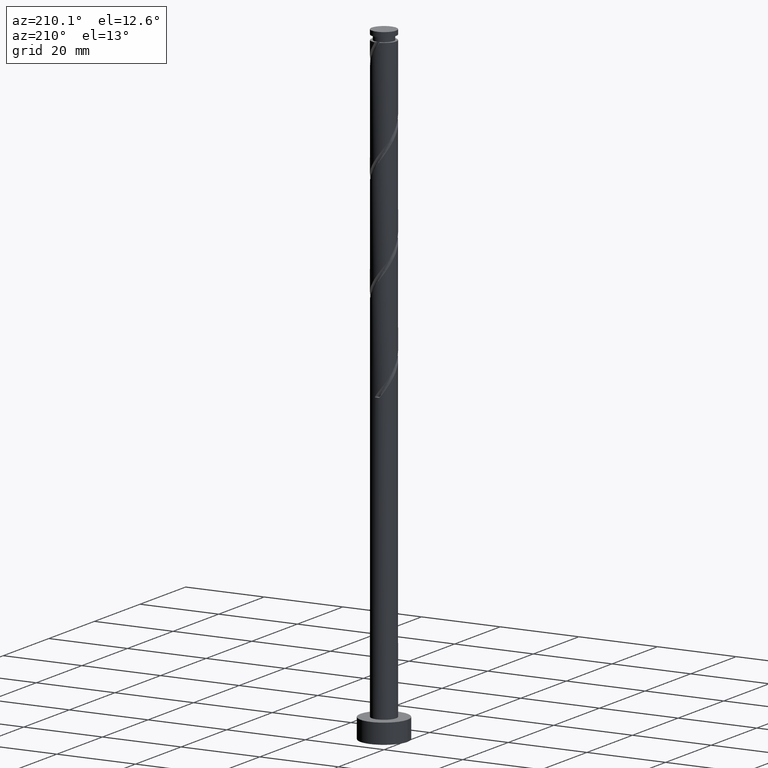
[diagram: clean part render]
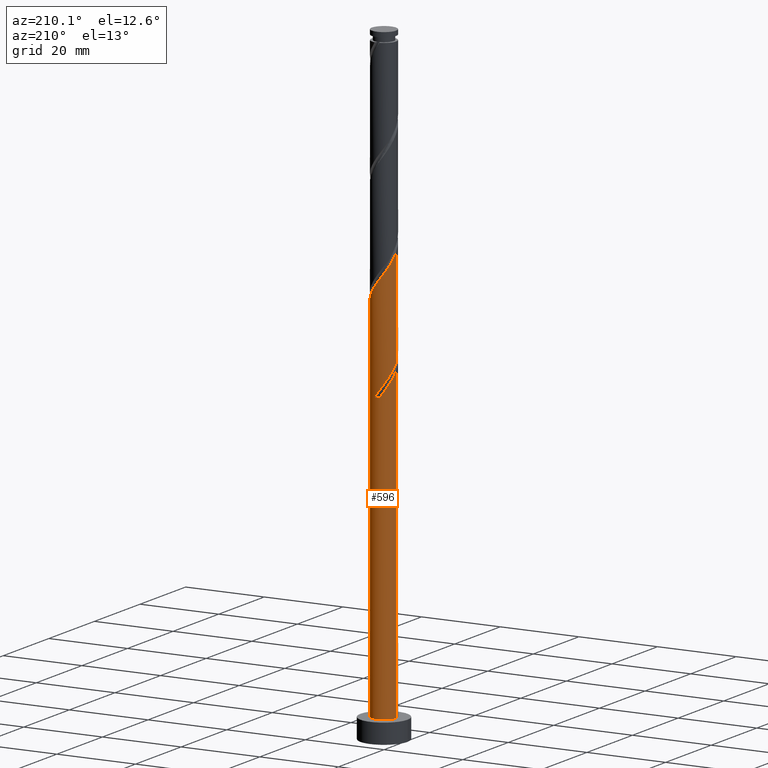
[diagram: same view with one face highlighted and labeled with its STEP entity id]
A machine part, auxiliary view. The second image highlights one B-rep face of the part: STEP entity #596.
In plain terms, the highlighted cylindrical surface (edge-blend (fillet) strip) has radius 3.1 mm, axis along (-0, -0, -1).
Its self-contained STEP definition (entity closure, byte-faithful):
#2 = EDGE_LOOP ( 'NONE', ( #758, #532, #890, #922, #84, #842, #1094, #31 ) ) ;
#27 = DIRECTION ( 'NONE',  ( -0.000000000000000000, -0.000000000000000000, -1.000000000000000000 ) ) ;
#31 = ORIENTED_EDGE ( 'NONE', *, *, #294, .F. ) ;
#79 = CARTESIAN_POINT ( 'NONE',  ( 0.6168922110061061392, 3.037999999999998924, 77.56397042250446816 ) ) ;
#84 = ORIENTED_EDGE ( 'NONE', *, *, #1153, .F. ) ;
#92 = CARTESIAN_POINT ( 'NONE',  ( 2.245062623899104715, 2.183656025078342999, 99.98821284674693288 ) ) ;
#135 = CARTESIAN_POINT ( 'NONE',  ( 0.000000000000000000, 0.000000000000000000, 77.56397042250448237 ) ) ;
#157 = CARTESIAN_POINT ( 'NONE',  ( -2.919284625192889671, 1.042965616457419697, 83.62457648311053049 ) ) ;
#200 = CARTESIAN_POINT ( 'NONE',  ( -3.100000000000000089, 0.000000000000000000, 160.0000000000000000 ) ) ;
#202 = CARTESIAN_POINT ( 'NONE',  ( -1.053690668162835520, 2.949304290322760203, 78.17003102856506302 ) ) ;
#220 = EDGE_CURVE ( 'NONE', #1447, #398, #480, .T. ) ;
#223 = CARTESIAN_POINT ( 'NONE',  ( 3.069240442222558318, 0.6232358533614310581, 97.56397042250448237 ) ) ;
#238 = CARTESIAN_POINT ( 'NONE',  ( -3.100000000000004974, -2.602486802408363546E-15, 110.0478492765369083 ) ) ;
#244 = CARTESIAN_POINT ( 'NONE',  ( 3.100000000000004974, 2.437961774669903870E-15, 96.71451594320359391 ) ) ;
#266 = DIRECTION ( 'NONE',  ( 0.000000000000000000, -0.000000000000000000, -1.000000000000000000 ) ) ;
#282 = CARTESIAN_POINT ( 'NONE',  ( -3.094870455675655663, 0.1782606591089399839, 84.83669769523174864 ) ) ;
#294 = EDGE_CURVE ( 'NONE', #1347, #1640, #303, .T. ) ;
#300 = LINE ( 'NONE', #520, #1242 ) ;
#303 = LINE ( 'NONE', #382, #694 ) ;
#333 = CARTESIAN_POINT ( 'NONE',  ( -0.2639997657463932224, 3.088738273743155016, 78.77609163462568631 ) ) ;
#334 = DIRECTION ( 'NONE',  ( -0.000000000000000000, -0.000000000000000000, -1.000000000000000000 ) ) ;
#350 = CARTESIAN_POINT ( 'NONE',  ( -1.447807249622134806, 2.741141033938533589, 78.77609163462567210 ) ) ;
#354 = DIRECTION ( 'NONE',  ( -0.000000000000000000, -0.000000000000000000, -1.000000000000000000 ) ) ;
#355 = CARTESIAN_POINT ( 'NONE',  ( -2.699945692952827603, 1.523250883835457481, 107.8670007255347656 ) ) ;
#358 = VERTEX_POINT ( 'NONE', #79 ) ;
#359 = CARTESIAN_POINT ( 'NONE',  ( -2.699945692952827603, 1.523250883835457481, 81.20033405886810840 ) ) ;
#382 = CARTESIAN_POINT ( 'NONE',  ( -3.100000000000000089, 0.000000000000000000, 160.0000000000000000 ) ) ;
#398 = VERTEX_POINT ( 'NONE', #1329 ) ;
#457 = CARTESIAN_POINT ( 'NONE',  ( -0.7080932853421627593, 3.050780837809067059, 79.38215224068629539 ) ) ;
#472 = EDGE_CURVE ( 'NONE', #1118, #358, #927, .T. ) ;
#480 = CIRCLE ( 'NONE', #1296, 3.100000000000000089 ) ;
#496 = CARTESIAN_POINT ( 'NONE',  ( -3.100000000000004530, 0.3550396748938864921, 109.5618893235655804 ) ) ;
#508 = CARTESIAN_POINT ( 'NONE',  ( -2.161429555315033113, 2.222211123500799967, 106.6548795134135332 ) ) ;
#520 = CARTESIAN_POINT ( 'NONE',  ( 3.100000000000000089, 3.796405077356794918E-16, 160.0000000000000000 ) ) ;
#526 = VERTEX_POINT ( 'NONE', #888 ) ;
#532 = ORIENTED_EDGE ( 'NONE', *, *, #770, .T. ) ;
#593 = CARTESIAN_POINT ( 'NONE',  ( -3.099999999999998757, 3.484939223914675232E-15, 85.08009156847202803 ) ) ;
#595 = DIRECTION ( 'NONE',  ( 1.000000000000000000, 0.000000000000000000, 0.000000000000000000 ) ) ;
#596 = ADVANCED_FACE ( 'NONE', ( #1497 ), #1280, .T. ) ;
#605 = CARTESIAN_POINT ( 'NONE',  ( -1.447807249622134806, 2.741141033938533589, 105.4427583012923293 ) ) ;
#626 = CARTESIAN_POINT ( 'NONE',  ( -1.053690668162835520, 2.949304290322760203, 104.8366976952317202 ) ) ;
#630 = DIRECTION ( 'NONE',  ( -0.000000000000000000, -0.000000000000000000, -1.000000000000000000 ) ) ;
#639 = CARTESIAN_POINT ( 'NONE',  ( 2.919284625192895000, 1.042965616457420364, 98.17003102856507724 ) ) ;
#650 =( BOUNDED_CURVE ( )  B_SPLINE_CURVE ( 2, ( #906, #913, #282, #1292, #157, #1043, #1054, #1210, #1609, #1446, #1462, #457, #333, #835, #703 ),
 .UNSPECIFIED., .F., .T. ) 
 B_SPLINE_CURVE_WITH_KNOTS ( ( 3, 2, 2, 2, 2, 2, 2, 3 ),
 ( 0.9295252162417513286, 0.9318181818181817677, 0.9431818181818182323, 0.9545454545454545858, 0.9659090909090909394, 0.9772727272727272929, 0.9886363636363636465, 1.000000000000000000 ),
 .UNSPECIFIED. ) 
 CURVE ( )  GEOMETRIC_REPRESENTATION_ITEM ( )  RATIONAL_B_SPLINE_CURVE ( ( 0.9061101570135575711, 0.9072237824201396794, 0.9090909090909171653, 0.8998376744372194036, 0.9090909090909171653, 0.8998376744372194036, 0.9090909090909171653, 0.8998376744372194036, 0.9090909090909171653, 0.8998376744372194036, 0.9090909090909171653, 0.8998376744372194036, 0.9090909090909171653, 0.8998376744372194036, 0.9090909090909171653 ) ) 
 REPRESENTATION_ITEM ( '' )  );
#694 = VECTOR ( 'NONE', #354, 1000.000000000000000 ) ;
#698 = CARTESIAN_POINT ( 'NONE',  ( 0.000000000000000000, 0.000000000000000000, 5.000000000000000000 ) ) ;
#703 = CARTESIAN_POINT ( 'NONE',  ( 0.6168922110061061392, 3.037999999999998924, 77.56397042250446816 ) ) ;
#712 = CARTESIAN_POINT ( 'NONE',  ( -2.918956106357025515, 1.135057298223624000, 81.80639466492874590 ) ) ;
#735 = CARTESIAN_POINT ( 'NONE',  ( 2.507195716031167976, 1.823175702315876556, 99.38215224068628117 ) ) ;
#758 = ORIENTED_EDGE ( 'NONE', *, *, #1068, .F. ) ;
#764 = CARTESIAN_POINT ( 'NONE',  ( -2.918956106357025515, 1.135057298223624000, 108.4730613315953747 ) ) ;
#770 = EDGE_CURVE ( 'NONE', #807, #1447, #300, .T. ) ;
#783 = CARTESIAN_POINT ( 'NONE',  ( 3.100000000000004974, 2.437961774669903870E-15, 96.71451594320359391 ) ) ;
#797 = AXIS2_PLACEMENT_3D ( 'NONE', #1244, #630, #880 ) ;
#807 = VERTEX_POINT ( 'NONE', #783 ) ;
#825 =( BOUNDED_CURVE ( )  B_SPLINE_CURVE ( 2, ( #984, #202, #350, #1106, #858, #1245, #359, #712, #1365, #1615, #1356 ),
 .UNSPECIFIED., .F., .T. ) 
 B_SPLINE_CURVE_WITH_KNOTS ( ( 3, 2, 2, 2, 2, 3 ),
 ( 0.000000000000000000, 0.01136363636363635354, 0.02272727272727270709, 0.03409090909090906063, 0.04545454545454541417, 0.05452521624175107190 ),
 .UNSPECIFIED. ) 
 CURVE ( )  GEOMETRIC_REPRESENTATION_ITEM ( )  RATIONAL_B_SPLINE_CURVE ( ( 0.9090909090909243817, 0.8998376744372265090, 0.9090909090909243817, 0.8998376744372265090, 0.9090909090909243817, 0.8998376744372265090, 0.9090909090909243817, 0.8998376744372265090, 0.9090909090909243817, 0.9017048011080042169, 0.9061101570135644545 ) ) 
 REPRESENTATION_ITEM ( '' )  );
#835 = CARTESIAN_POINT ( 'NONE',  ( 0.1800937538493764256, 3.126695709677243862, 78.17003102856510566 ) ) ;
#842 = ORIENTED_EDGE ( 'NONE', *, *, #472, .T. ) ;
#857 = LINE ( 'NONE', #200, #1216 ) ;
#858 = CARTESIAN_POINT ( 'NONE',  ( -2.161429555315033113, 2.222211123500799967, 79.98821284674689025 ) ) ;
#860 = EDGE_CURVE ( 'NONE', #1640, #358, #650, .T. ) ;
#876 = CARTESIAN_POINT ( 'NONE',  ( -1.841923831081434759, 2.532977777554310528, 106.0488189073529668 ) ) ;
#880 = DIRECTION ( 'NONE',  ( -1.000000000000000000, 0.000000000000000000, 0.000000000000000000 ) ) ;
#888 = CARTESIAN_POINT ( 'NONE',  ( -3.100000000000004974, -2.602486802408363941E-15, 83.38118260987026531 ) ) ;
#890 = ORIENTED_EDGE ( 'NONE', *, *, #220, .T. ) ;
#892 = CARTESIAN_POINT ( 'NONE',  ( -3.100000000000004974, -2.602486802408363941E-15, 110.0478492765369083 ) ) ;
#906 = CARTESIAN_POINT ( 'NONE',  ( -3.099999999999998757, 3.484939223914675232E-15, 85.08009156847202803 ) ) ;
#913 = CARTESIAN_POINT ( 'NONE',  ( -3.099999999999998757, 0.08920413222385180363, 84.95799356375380285 ) ) ;
#922 = ORIENTED_EDGE ( 'NONE', *, *, #1524, .F. ) ;
#927 = CIRCLE ( 'NONE', #1138, 3.100000000000000089 ) ;
#980 = CARTESIAN_POINT ( 'NONE',  ( 1.538914817748200825, 2.727709846153857587, 101.2003340588681226 ) ) ;
#984 = CARTESIAN_POINT ( 'NONE',  ( -0.6168922110061050290, 3.038000000000004697, 77.56397042250446816 ) ) ;
#996 = CARTESIAN_POINT ( 'NONE',  ( 1.123504051545182625, 2.889245341981463877, 101.8063946649286891 ) ) ;
#1043 = CARTESIAN_POINT ( 'NONE',  ( -2.769328808163226796, 1.462695379553409003, 83.01851587704996405 ) ) ;
#1054 = CARTESIAN_POINT ( 'NONE',  ( -2.507195716031161759, 1.823175702315874780, 82.41245527098932655 ) ) ;
#1068 = EDGE_CURVE ( 'NONE', #807, #1347, #1209, .T. ) ;
#1094 = ORIENTED_EDGE ( 'NONE', *, *, #860, .F. ) ;
#1106 = CARTESIAN_POINT ( 'NONE',  ( -1.841923831081434759, 2.532977777554310528, 79.38215224068626696 ) ) ;
#1109 = CARTESIAN_POINT ( 'NONE',  ( 3.100000000000004086, 0.08920413222385412122, 96.83661394792180488 ) ) ;
#1118 = VERTEX_POINT ( 'NONE', #1600 ) ;
#1123 = CARTESIAN_POINT ( 'NONE',  ( 0.7080932853421650908, 3.050780837809071055, 102.4124552709893266 ) ) ;
#1138 = AXIS2_PLACEMENT_3D ( 'NONE', #135, #266, #1364 ) ;
#1141 = CARTESIAN_POINT ( 'NONE',  ( 2.769328808163231681, 1.462695379553409891, 98.77609163462571473 ) ) ;
#1153 = EDGE_CURVE ( 'NONE', #1118, #526, #825, .T. ) ;
#1185 = CARTESIAN_POINT ( 'NONE',  ( 3.100000000000000089, 3.796405077356794918E-16, 5.000000000000000000 ) ) ;
#1210 = CARTESIAN_POINT ( 'NONE',  ( -2.245062623899099830, 2.183656025078341667, 81.80639466492870326 ) ) ;
#1209 =( BOUNDED_CURVE ( )  B_SPLINE_CURVE ( 2, ( #244, #1109, #1234, #223, #639, #1141, #735, #92, #1659, #980, #996, #1123, #1502, #1494, #1358, #626, #605, #876, #508, #1487, #355, #764, #1620, #496, #238 ),
 .UNSPECIFIED., .F., .T. ) 
 B_SPLINE_CURVE_WITH_KNOTS ( ( 3, 2, 2, 2, 2, 2, 2, 2, 2, 2, 2, 2, 3 ),
 ( 0.1795252162417514119, 0.1818181818181817677, 0.1931818181818182323, 0.2045454545454545858, 0.2159090909090909394, 0.2272727272727272929, 0.2386363636363636465, 0.2500000000000000000, 0.2613636363636363535, 0.2727272727272727071, 0.2840909090909090606, 0.2954545454545454142, 0.3045252162417511621 ),
 .UNSPECIFIED. ) 
 CURVE ( )  GEOMETRIC_REPRESENTATION_ITEM ( )  RATIONAL_B_SPLINE_CURVE ( ( 0.9061101570135647876, 0.9072237824201468959, 0.9090909090909243817, 0.8998376744372265090, 0.9090909090909243817, 0.8998376744372265090, 0.9090909090909243817, 0.8998376744372265090, 0.9090909090909243817, 0.8998376744372265090, 0.9090909090909243817, 0.8998376744372265090, 0.9090909090909243817, 0.8998376744372265090, 0.9090909090909243817, 0.8998376744372265090, 0.9090909090909243817, 0.8998376744372265090, 0.9090909090909243817, 0.8998376744372265090, 0.9090909090909243817, 0.8998376744372265090, 0.9090909090909243817, 0.9017048011080042169, 0.9061101570135644545 ) ) 
 REPRESENTATION_ITEM ( '' )  );
#1216 = VECTOR ( 'NONE', #334, 1000.000000000000000 ) ;
#1234 = CARTESIAN_POINT ( 'NONE',  ( 3.094870455675660548, 0.1782606591089390125, 96.95790981644384487 ) ) ;
#1242 = VECTOR ( 'NONE', #27, 1000.000000000000000 ) ;
#1244 = CARTESIAN_POINT ( 'NONE',  ( 0.000000000000000000, 0.000000000000000000, 160.0000000000000000 ) ) ;
#1245 = CARTESIAN_POINT ( 'NONE',  ( -2.480935279548631467, 1.911444469447291183, 80.59427345280749932 ) ) ;
#1280 = CYLINDRICAL_SURFACE ( 'NONE', #797, 3.100000000000000089 ) ;
#1292 = CARTESIAN_POINT ( 'NONE',  ( -3.069240442222553433, 0.6232358533614315022, 84.23063708917113956 ) ) ;
#1296 = AXIS2_PLACEMENT_3D ( 'NONE', #698, #1560, #595 ) ;
#1329 = CARTESIAN_POINT ( 'NONE',  ( -3.100000000000000089, 0.000000000000000000, 5.000000000000000000 ) ) ;
#1347 = VERTEX_POINT ( 'NONE', #892 ) ;
#1356 = CARTESIAN_POINT ( 'NONE',  ( -3.100000000000004974, -2.602486802408363546E-15, 83.38118260987026531 ) ) ;
#1358 = CARTESIAN_POINT ( 'NONE',  ( -0.6168922110061050290, 3.038000000000004697, 104.2306370891711111 ) ) ;
#1364 = DIRECTION ( 'NONE',  ( -1.000000000000000000, 0.000000000000000000, 0.000000000000000000 ) ) ;
#1365 = CARTESIAN_POINT ( 'NONE',  ( -3.019728287742894590, 0.7008859166835882393, 82.41245527098929813 ) ) ;
#1446 = CARTESIAN_POINT ( 'NONE',  ( -1.538914817748198605, 2.727709846153853590, 80.59427345280749932 ) ) ;
#1447 = VERTEX_POINT ( 'NONE', #1185 ) ;
#1462 = CARTESIAN_POINT ( 'NONE',  ( -1.123504051545180182, 2.889245341981459436, 79.98821284674690446 ) ) ;
#1487 = CARTESIAN_POINT ( 'NONE',  ( -2.480935279548631467, 1.911444469447291183, 107.2609401194741707 ) ) ;
#1494 = CARTESIAN_POINT ( 'NONE',  ( -0.1800937538493757040, 3.126695709677248747, 103.6245764831105305 ) ) ;
#1497 = FACE_OUTER_BOUND ( 'NONE', #2, .T. ) ;
#1502 = CARTESIAN_POINT ( 'NONE',  ( 0.2639997657463944991, 3.088738273743160345, 103.0185158770499498 ) ) ;
#1524 = EDGE_CURVE ( 'NONE', #526, #398, #857, .T. ) ;
#1560 = DIRECTION ( 'NONE',  ( 0.000000000000000000, 0.000000000000000000, 1.000000000000000000 ) ) ;
#1600 = CARTESIAN_POINT ( 'NONE',  ( -0.6168922110061050290, 3.038000000000004697, 77.56397042250446816 ) ) ;
#1609 = CARTESIAN_POINT ( 'NONE',  ( -1.891988720823647885, 2.455682935616096962, 81.20033405886809419 ) ) ;
#1615 = CARTESIAN_POINT ( 'NONE',  ( -3.100000000000003642, 0.3550396748938899893, 82.89522265689893743 ) ) ;
#1620 = CARTESIAN_POINT ( 'NONE',  ( -3.019728287742894590, 0.7008859166835882393, 109.0791219376559980 ) ) ;
#1640 = VERTEX_POINT ( 'NONE', #593 ) ;
#1659 = CARTESIAN_POINT ( 'NONE',  ( 1.891988720823650993, 2.455682935616100959, 100.5942734528074709 ) ) ;